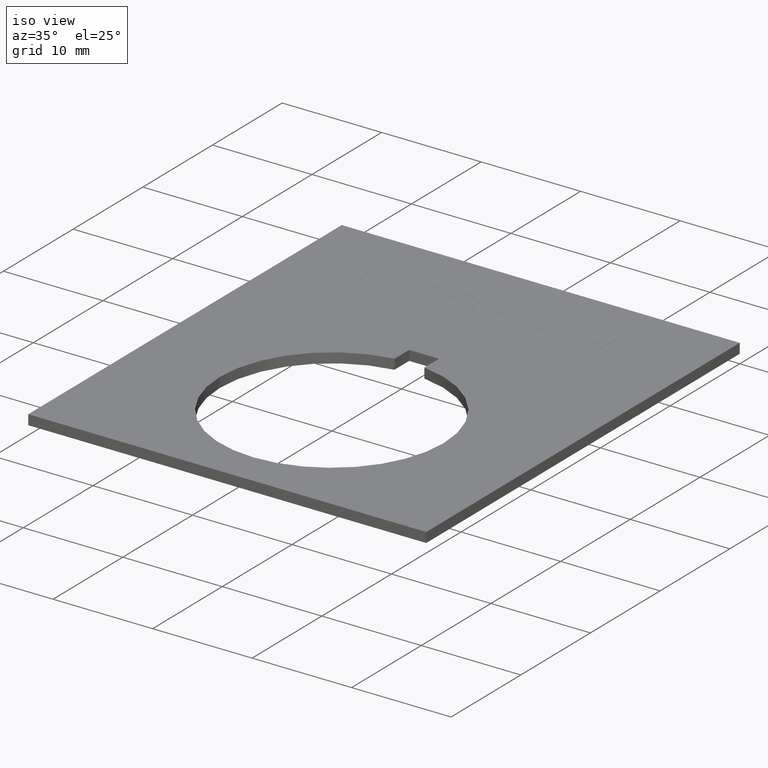
[diagram: clean part render]
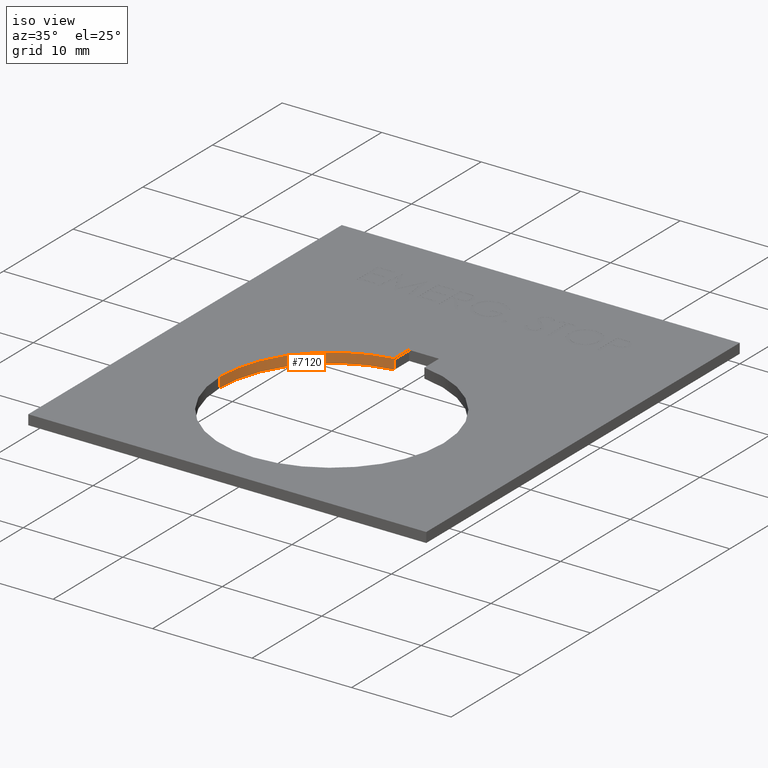
[diagram: same view with one face highlighted and labeled with its STEP entity id]
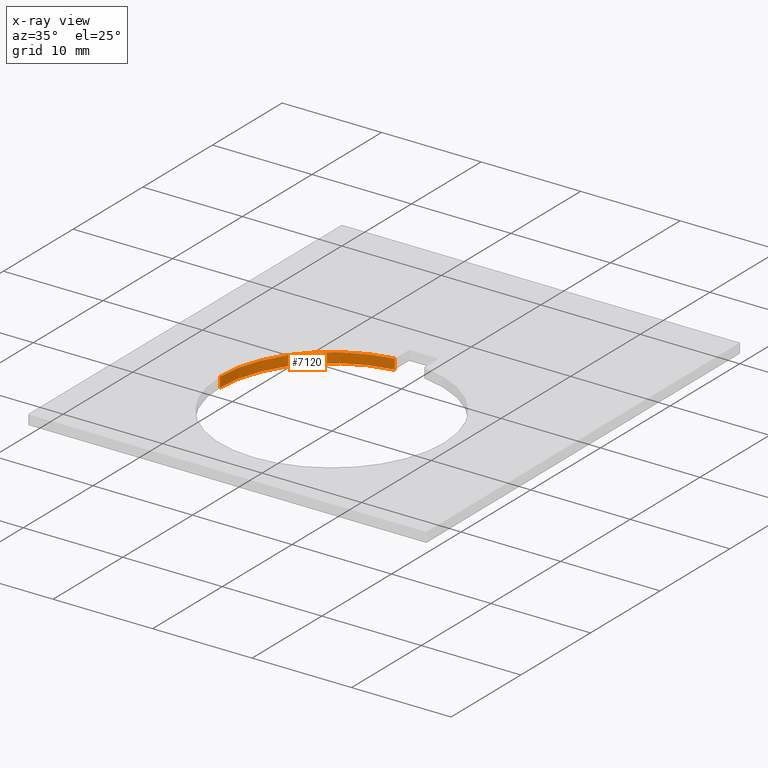
[diagram: x-ray of the same camera — body ghosted, the highlighted face saturated]
A machine part, iso view. The second image highlights one B-rep face of the part: STEP entity #7120.
The next image is the same camera in x-ray: the body ghosted, the highlighted face saturated — about 0% of this face is hidden behind the body in this view.
In plain terms, the highlighted cylindrical surface (partial cylindrical patch) has radius 11.25 mm, axis along (-0, -0, 1).
Its self-contained STEP definition (entity closure, byte-faithful):
#187 = CARTESIAN_POINT ( 'NONE',  ( -1.500000000000000200, 11.14955156048887900, -0.5000000000000000000 ) ) ;
#192 = EDGE_CURVE ( 'NONE', #509, #3777, #7188, .T. ) ;
#277 = CARTESIAN_POINT ( 'NONE',  ( 0.0000000000000000000, 0.0000000000000000000, -0.5000000000000000000 ) ) ;
#300 = DIRECTION ( 'NONE',  ( -0.0000000000000000000, -0.0000000000000000000, 1.000000000000000000 ) ) ;
#509 = VERTEX_POINT ( 'NONE', #1123 ) ;
#733 = CARTESIAN_POINT ( 'NONE',  ( 0.0000000000000000000, 0.0000000000000000000, 0.5000000000000000000 ) ) ;
#925 = DIRECTION ( 'NONE',  ( 0.0000000000000000000, 0.0000000000000000000, 1.000000000000000000 ) ) ;
#1123 = CARTESIAN_POINT ( 'NONE',  ( -11.25000000000000200, 1.377727649040772600E-015, -0.5000000000000000000 ) ) ;
#1681 = EDGE_CURVE ( 'NONE', #5420, #5524, #3602, .T. ) ;
#1719 = CARTESIAN_POINT ( 'NONE',  ( 0.0000000000000000000, 0.0000000000000000000, -0.5000000000000000000 ) ) ;
#1745 = VECTOR ( 'NONE', #2278, 1000.000000000000000 ) ;
#2074 = DIRECTION ( 'NONE',  ( 1.000000000000000000, 0.0000000000000000000, 0.0000000000000000000 ) ) ;
#2098 = CIRCLE ( 'NONE', #2623, 11.25000000000000200 ) ;
#2168 = DIRECTION ( 'NONE',  ( 0.0000000000000000000, 0.0000000000000000000, 1.000000000000000000 ) ) ;
#2278 = DIRECTION ( 'NONE',  ( -0.0000000000000000000, -0.0000000000000000000, 1.000000000000000000 ) ) ;
#2367 = CARTESIAN_POINT ( 'NONE',  ( -1.500000000000000200, 11.14955156048887900, -0.5000000000000000000 ) ) ;
#2413 = CARTESIAN_POINT ( 'NONE',  ( -11.25000000000000200, 1.377727649040772600E-015, -0.5000000000000000000 ) ) ;
#2606 = CYLINDRICAL_SURFACE ( 'NONE', #3018, 11.25000000000000200 ) ;
#2623 = AXIS2_PLACEMENT_3D ( 'NONE', #277, #925, #5838 ) ;
#2726 = DIRECTION ( 'NONE',  ( 1.000000000000000000, 0.0000000000000000000, 0.0000000000000000000 ) ) ;
#2748 = ORIENTED_EDGE ( 'NONE', *, *, #1681, .T. ) ;
#2975 = ORIENTED_EDGE ( 'NONE', *, *, #7679, .T. ) ;
#3018 = AXIS2_PLACEMENT_3D ( 'NONE', #1719, #4158, #2726 ) ;
#3056 = FACE_OUTER_BOUND ( 'NONE', #8254, .T. ) ;
#3602 = LINE ( 'NONE', #2367, #1745 ) ;
#3777 = VERTEX_POINT ( 'NONE', #5281 ) ;
#4158 = DIRECTION ( 'NONE',  ( -0.0000000000000000000, -0.0000000000000000000, 1.000000000000000000 ) ) ;
#5281 = CARTESIAN_POINT ( 'NONE',  ( -11.25000000000000200, 1.377727649040772600E-015, 0.5000000000000000000 ) ) ;
#5420 = VERTEX_POINT ( 'NONE', #187 ) ;
#5464 = EDGE_CURVE ( 'NONE', #5420, #509, #2098, .T. ) ;
#5524 = VERTEX_POINT ( 'NONE', #6030 ) ;
#5760 = ORIENTED_EDGE ( 'NONE', *, *, #192, .F. ) ;
#5838 = DIRECTION ( 'NONE',  ( 1.000000000000000000, 0.0000000000000000000, 0.0000000000000000000 ) ) ;
#5916 = CIRCLE ( 'NONE', #6911, 11.25000000000000200 ) ;
#6030 = CARTESIAN_POINT ( 'NONE',  ( -1.500000000000000200, 11.14955156048887900, 0.5000000000000000000 ) ) ;
#6112 = VECTOR ( 'NONE', #300, 1000.000000000000000 ) ;
#6911 = AXIS2_PLACEMENT_3D ( 'NONE', #733, #2168, #2074 ) ;
#7120 = ADVANCED_FACE ( 'NONE', ( #3056 ), #2606, .F. ) ;
#7188 = LINE ( 'NONE', #2413, #6112 ) ;
#7679 = EDGE_CURVE ( 'NONE', #5524, #3777, #5916, .T. ) ;
#7884 = ORIENTED_EDGE ( 'NONE', *, *, #5464, .F. ) ;
#8254 = EDGE_LOOP ( 'NONE', ( #5760, #7884, #2748, #2975 ) ) ;